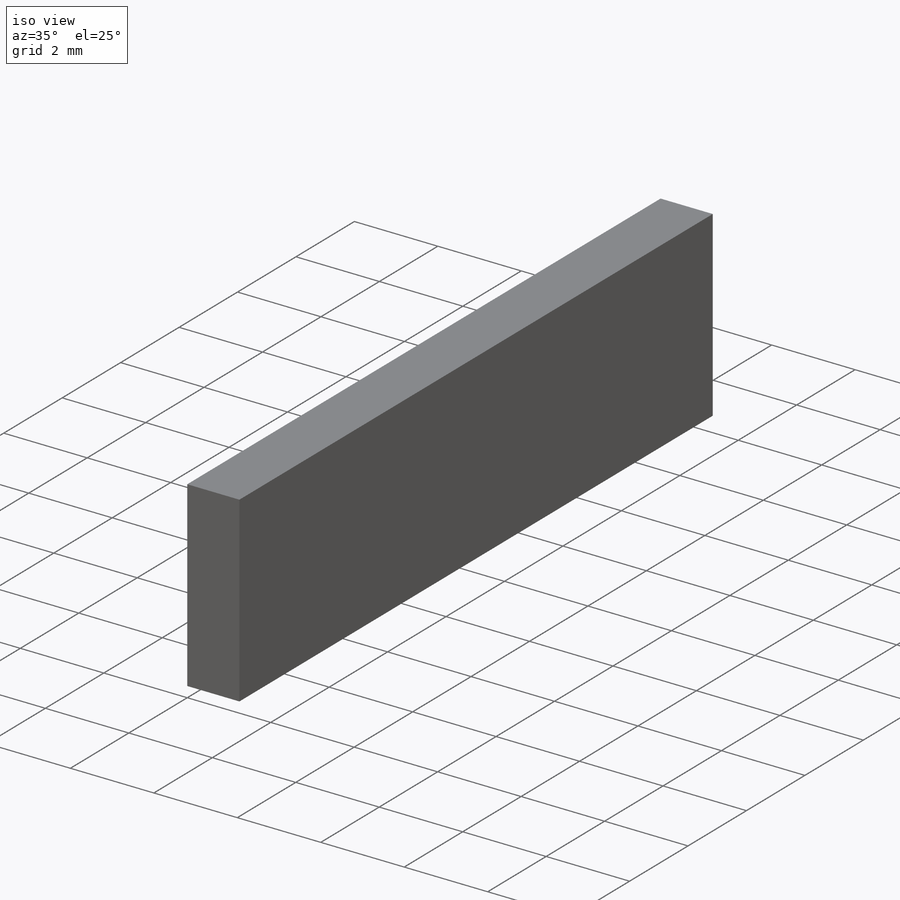
[diagram: iso view]
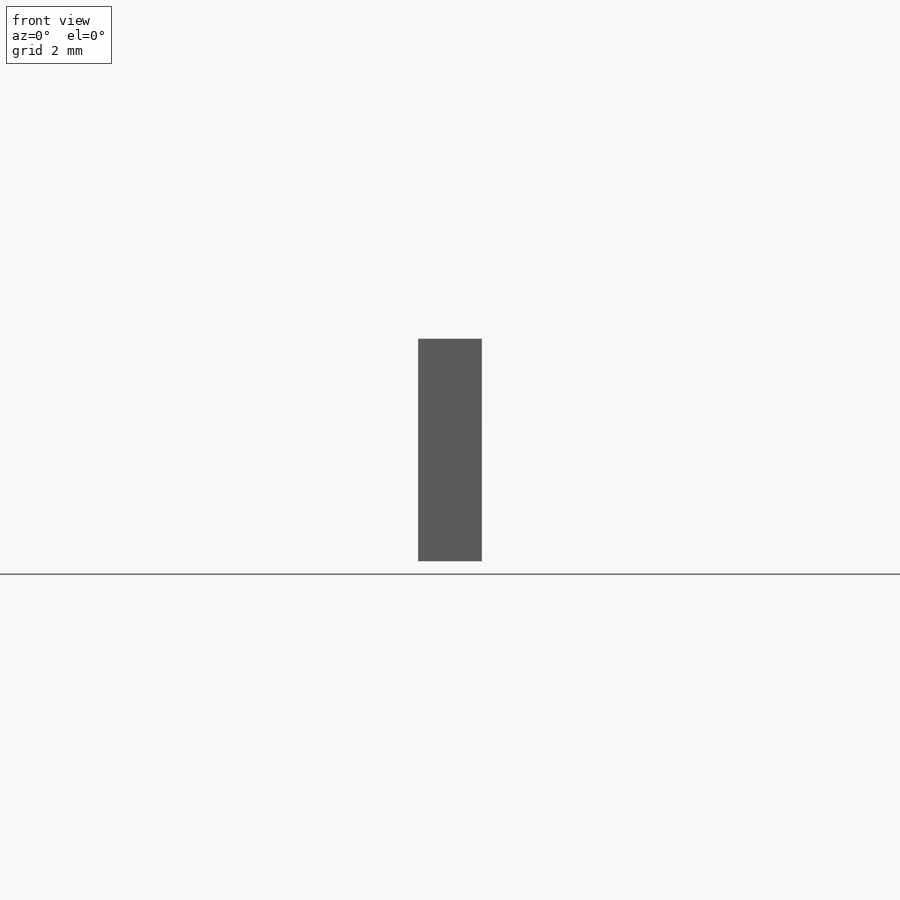
[diagram: front view]
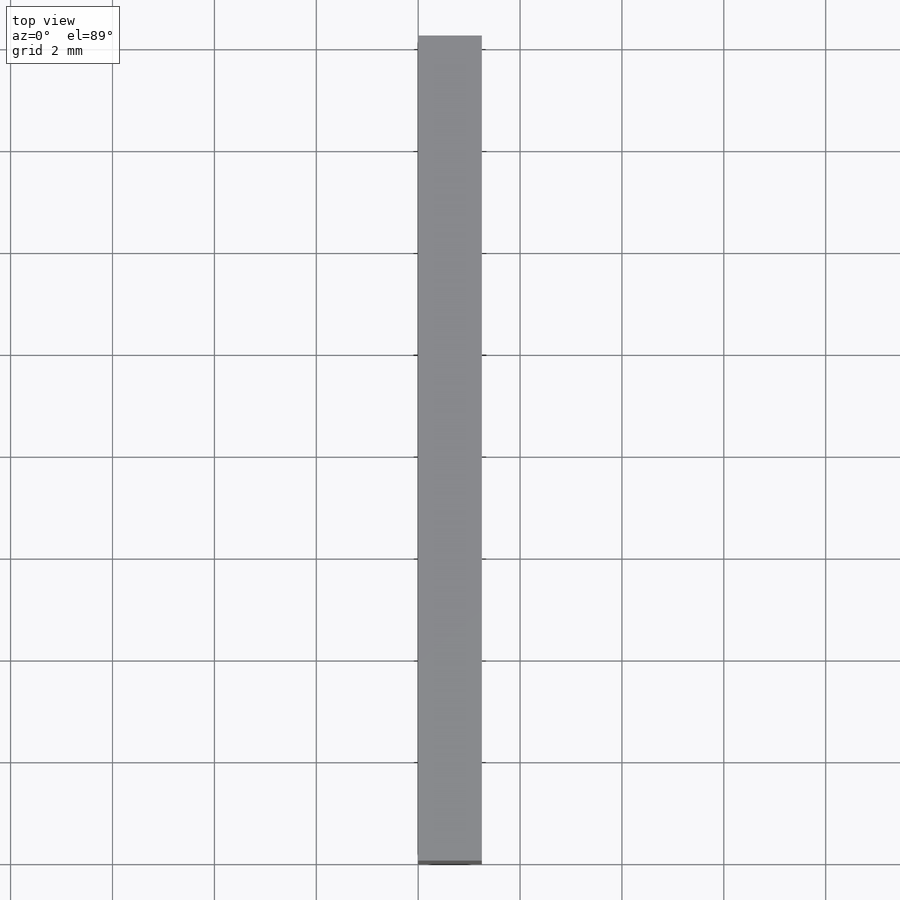
[diagram: top view]
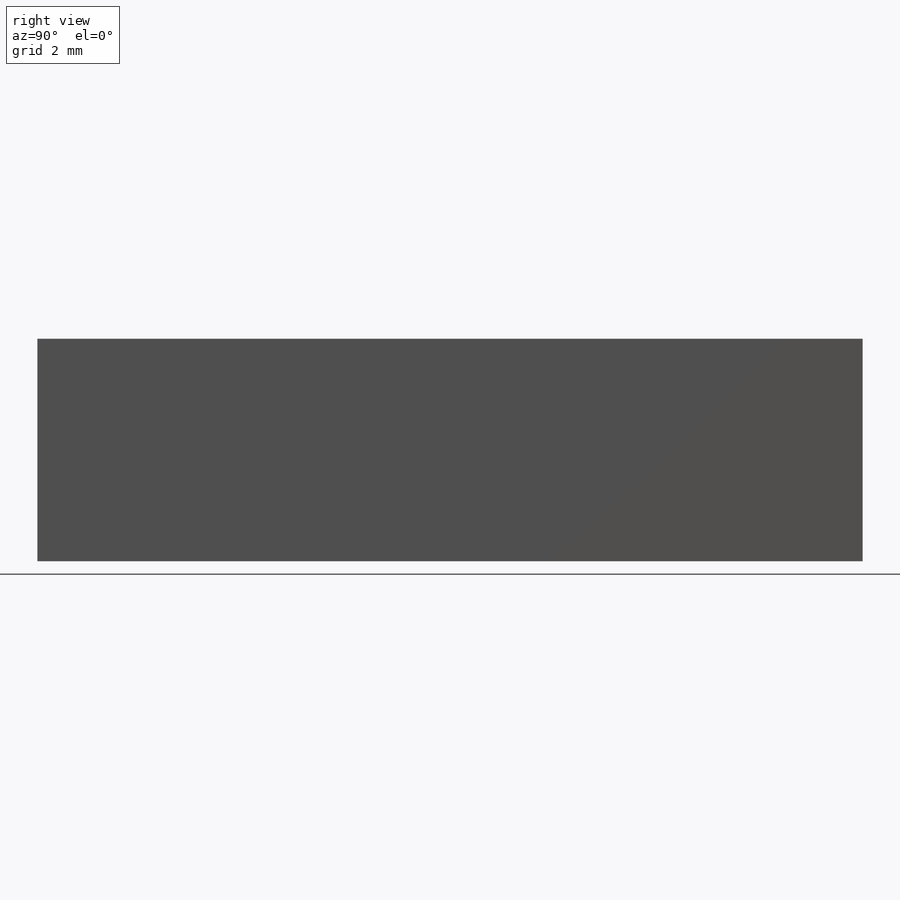
[diagram: right view]
SOLIDWORKS PART (.sldprt)
format: sldprt  version: not decoded by parser v0  size: 153,600 bytes
history: native  units: mm
features: sketch x3, extrude x2, material x1, cut_extrude x1 (+13 scaffold rows collapsed; 1 parser-record rows omitted)
feature tree (21):
  scaffold x13  (default folders/planes/origin — collapsed)
  material  "Material <not specified>"
  sketch  "Sketch1"  dims[D1=3.97mm D2=0.6mm D3=0.6mm D4=17.8mm D5=16.2mm]
  extrude  "Boss-Extrude1"  Depth=1.25mm
  parser-record x1  (decoder bookkeeping rows leaked as tree rows — omitted from the tree; the rows remain in map.json)
  sketch  "Sketch2"
  cut_extrude  "Cut-Extrude1"  Depth=1.25mm
  sketch  "Sketch3"  dims[D1=0.0mm]
  extrude  "Boss-Extrude2"  Depth=0.4mm
decode coverage: 5 of 6 modeling features carry decoded parameters
note: suppression state not decoded; provenance and decode notes live in map.json
